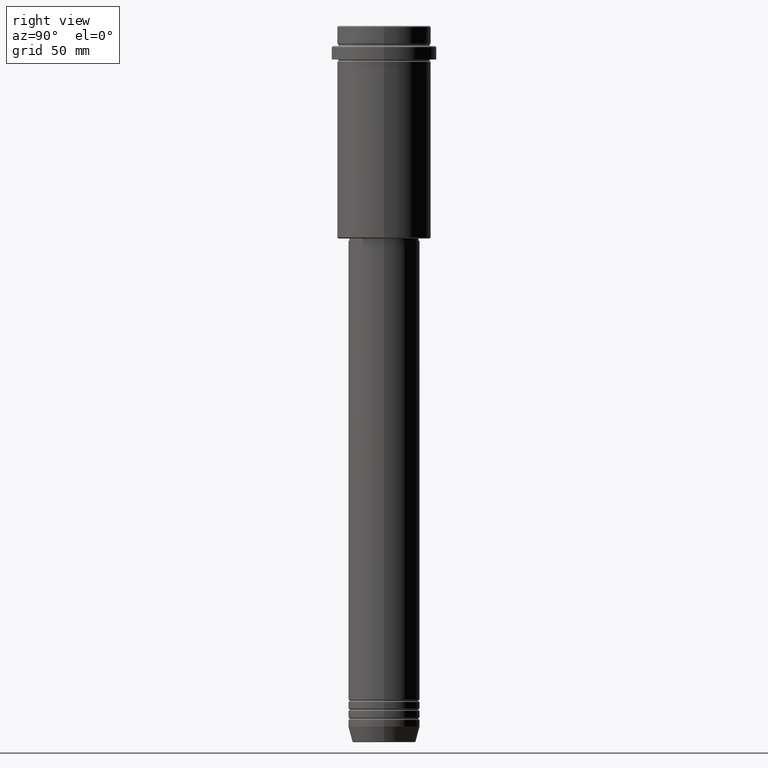
[diagram: clean part render]
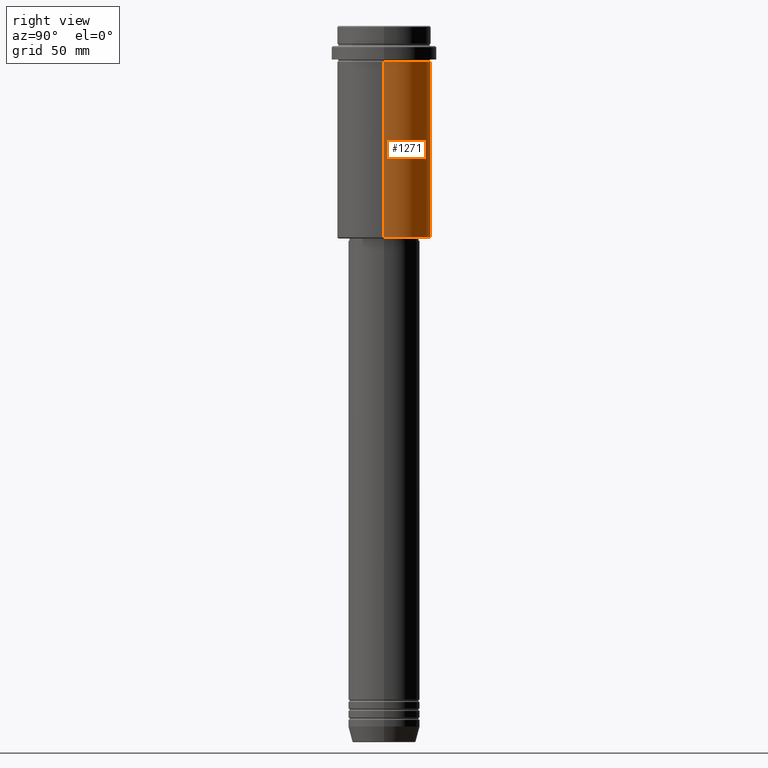
[diagram: same view with one face highlighted and labeled with its STEP entity id]
A machine part, right view. The second image highlights one B-rep face of the part: STEP entity #1271.
In plain terms, the highlighted cylindrical surface (partial cylindrical patch) has radius 21 mm, axis along (-0, -0, 1).
Its self-contained STEP definition (entity closure, byte-faithful):
#18 = DIRECTION ( 'NONE',  ( -0.000000000000000000, -0.000000000000000000, 1.000000000000000000 ) ) ;
#34 = DIRECTION ( 'NONE',  ( -0.000000000000000000, -0.000000000000000000, 1.000000000000000000 ) ) ;
#87 = DIRECTION ( 'NONE',  ( 1.000000000000000000, 0.000000000000000000, 0.000000000000000000 ) ) ;
#157 = CIRCLE ( 'NONE', #896, 21.00000000000000000 ) ;
#184 = CARTESIAN_POINT ( 'NONE',  ( -21.00000000000000000, 2.571758278209441661E-15, 0.000000000000000000 ) ) ;
#201 = ORIENTED_EDGE ( 'NONE', *, *, #822, .F. ) ;
#278 = DIRECTION ( 'NONE',  ( -1.000000000000000000, 0.000000000000000000, 0.000000000000000000 ) ) ;
#359 = EDGE_CURVE ( 'NONE', #1304, #958, #1371, .T. ) ;
#429 = CARTESIAN_POINT ( 'NONE',  ( 21.00000000000000000, 0.000000000000000000, -94.49999999999992895 ) ) ;
#470 = EDGE_CURVE ( 'NONE', #950, #1071, #548, .T. ) ;
#484 = DIRECTION ( 'NONE',  ( -0.000000000000000000, -0.000000000000000000, 1.000000000000000000 ) ) ;
#516 = CIRCLE ( 'NONE', #1313, 21.00000000000000000 ) ;
#542 = CYLINDRICAL_SURFACE ( 'NONE', #1192, 21.00000000000000000 ) ;
#548 = LINE ( 'NONE', #1218, #793 ) ;
#637 = CARTESIAN_POINT ( 'NONE',  ( 0.000000000000000000, 0.000000000000000000, 0.000000000000000000 ) ) ;
#644 = DIRECTION ( 'NONE',  ( -0.000000000000000000, -0.000000000000000000, 1.000000000000000000 ) ) ;
#656 = ORIENTED_EDGE ( 'NONE', *, *, #714, .T. ) ;
#674 = EDGE_LOOP ( 'NONE', ( #656, #1137, #201, #1108 ) ) ;
#714 = EDGE_CURVE ( 'NONE', #950, #1304, #516, .T. ) ;
#746 = CARTESIAN_POINT ( 'NONE',  ( -21.00000000000000000, 2.571758278209441661E-15, -94.49999999999992895 ) ) ;
#756 = CARTESIAN_POINT ( 'NONE',  ( -21.00000000000000000, 2.571758278209441661E-15, -16.00000000000000355 ) ) ;
#759 = FACE_OUTER_BOUND ( 'NONE', #674, .T. ) ;
#793 = VECTOR ( 'NONE', #18, 1000.000000000000000 ) ;
#822 = EDGE_CURVE ( 'NONE', #1071, #958, #157, .T. ) ;
#890 = CARTESIAN_POINT ( 'NONE',  ( 21.00000000000000000, 0.000000000000000000, -16.00000000000000355 ) ) ;
#896 = AXIS2_PLACEMENT_3D ( 'NONE', #1158, #937, #1066 ) ;
#928 = CARTESIAN_POINT ( 'NONE',  ( 0.000000000000000000, 0.000000000000000000, -94.49999999999992895 ) ) ;
#937 = DIRECTION ( 'NONE',  ( -0.000000000000000000, -0.000000000000000000, 1.000000000000000000 ) ) ;
#950 = VERTEX_POINT ( 'NONE', #429 ) ;
#958 = VERTEX_POINT ( 'NONE', #756 ) ;
#1066 = DIRECTION ( 'NONE',  ( 1.000000000000000000, 0.000000000000000000, 0.000000000000000000 ) ) ;
#1071 = VERTEX_POINT ( 'NONE', #890 ) ;
#1108 = ORIENTED_EDGE ( 'NONE', *, *, #470, .F. ) ;
#1137 = ORIENTED_EDGE ( 'NONE', *, *, #359, .T. ) ;
#1158 = CARTESIAN_POINT ( 'NONE',  ( 0.000000000000000000, 0.000000000000000000, -16.00000000000000355 ) ) ;
#1168 = VECTOR ( 'NONE', #484, 1000.000000000000000 ) ;
#1192 = AXIS2_PLACEMENT_3D ( 'NONE', #637, #644, #87 ) ;
#1218 = CARTESIAN_POINT ( 'NONE',  ( 21.00000000000000000, 0.000000000000000000, 0.000000000000000000 ) ) ;
#1271 = ADVANCED_FACE ( 'NONE', ( #759 ), #542, .T. ) ;
#1304 = VERTEX_POINT ( 'NONE', #746 ) ;
#1313 = AXIS2_PLACEMENT_3D ( 'NONE', #928, #34, #278 ) ;
#1371 = LINE ( 'NONE', #184, #1168 ) ;